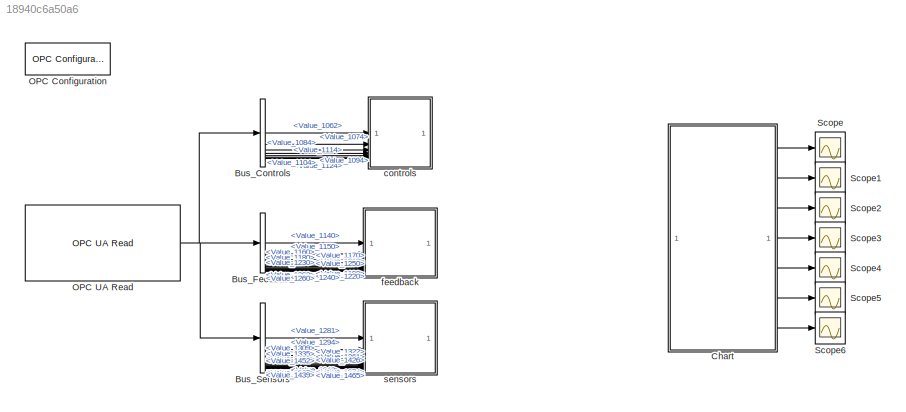
MODEL slx_18940c6a50a6
KIND model
CONFIG AbsTol = auto
CONFIG EnableMultiTasking = off
CONFIG FixedStep = auto
CONFIG InitFcn = % Exemplo no Windows, usando pscp (PuTTY scp) ou scp no Linux/macOS\nchave = '<userpath>/OneDrive/Área de Trabalho/matlab-Gemeo/Sombra_Distribution/Matlab_conect/id_rsa_matlab';\nusuario = 'root';\nip = '200.145.26.206';\narquivo_remoto = '/root/ProjetoGemeo/AAS/Distribution/Variables.csv';\narquivo_local = 'Variables.csv';\n\n% Comando scp para baixar arquivo usando chave privada\ncmd = sprintf('scp -i "...<+338ch>
CONFIG MaxStep = auto
CONFIG MinStep = auto
CONFIG RelTol = 1e-3
CONFIG SampleTimeConstraint = Unconstrained
CONFIG SolverName = VariableStepAuto
CONFIG StartTime = 0.0
CONFIG StopTime = 10.0
BLOCK [BusSelector] Bus_Controls
  OutputSignals = Value_1062,Value_1074,Value_1084,Value_1094,Value_1104,Value_1114,Value_1124
BLOCK [BusSelector] Bus_Feedback
  OutputSignals = Value_1140,Value_1150,Value_1160,Value_1170,Value_1180,Value_1190,Value_1200,Value_1210,Value_1220,Value_1230,Value_1240,Value_1250,Value_1260
BLOCK [BusSelector] Bus_Sensors
  OutputSignals = Value_1281,Value_1294,Value_1309,Value_1322,Value_1335,Value_1348,Value_1361,Value_1374,Value_1387,Value_1400,Value_1413,Value_1426,Value_1439,Value_1452,Value_1465
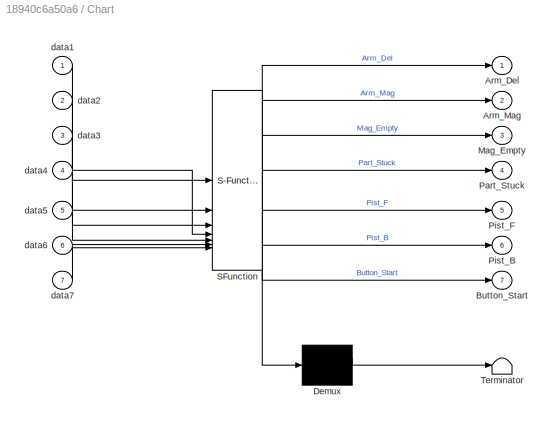
BLOCK [SubSystem] Chart
  ErrorFcn = Stateflow.Translate.translate
  PermitHierarchicalResolution = ExplicitOnly
  SFBlockType = Chart
  TreatAsAtomicUnit = on
BLOCK [Demux] Chart/ Demux 
  Outputs = 1
BLOCK [S-Function] Chart/ SFunction 
  EnableBusSupport = on
  FunctionName = sf_sfun
  PortCounts = [7 8]
  SFcnIsStateOwnerBlock = off
  SFunctionDeploymentMode = off
  Tag = Stateflow S-Function 3
BLOCK [Terminator] Chart/ Terminator 
BLOCK [Outport] Chart/Arm_Del
BLOCK [Outport] Chart/Arm_Mag
  Port = 2
BLOCK [Outport] Chart/Button_Start
  Port = 7
BLOCK [Outport] Chart/Mag_Empty
  Port = 3
BLOCK [Outport] Chart/Part_Stuck
  Port = 4
BLOCK [Outport] Chart/Pist_B
  Port = 6
BLOCK [Outport] Chart/Pist_F
  Port = 5
BLOCK [Inport] Chart/data1
BLOCK [Inport] Chart/data2
  Port = 2
BLOCK [Inport] Chart/data3
  Port = 3
BLOCK [Inport] Chart/data4
  Port = 4
BLOCK [Inport] Chart/data5
  Port = 5
BLOCK [Inport] Chart/data6
  Port = 6
BLOCK [Inport] Chart/data7
  Port = 7
BLOCK [Reference] OPC Configuration  REF=opclib/OPC Configuration
  SourceBlock = opclib/OPC Configuration
  SourceType = OPC Configuration
BLOCK [Reference] OPC UA Read  REF=opcualib/OPC UA Read
  SourceBlock = opcualib/OPC UA Read
  SourceType = opcUARead
BLOCK [Scope] Scope
  Floating = off
  NumInputPorts = 1
  ScopeSpecificationString = Simulink.scopes.TimeScopeBlockCfg('CurrentConfiguration', extmgr.ConfigurationSet(extmgr.Configuration('Core','General UI',true),extmgr.Configuration('Core','Source UI',true),extmgr.Configuration('Sources','WiredSimulink',true),extmgr.Configuration('Visuals','Time Domain',true,'SerializedDisplays',{struct('MinYLimReal','-0.125','MaxYLimReal','1.125','YLabelReal','','MinYLimMag','0.00000','MaxYLimM...<+1443ch>
BLOCK [Scope] Scope1
  Floating = off
  NumInputPorts = 1
  ScopeSpecificationString = Simulink.scopes.TimeScopeBlockCfg('CurrentConfiguration', extmgr.ConfigurationSet(extmgr.Configuration('Core','General UI',true),extmgr.Configuration('Core','Source UI',true),extmgr.Configuration('Sources','WiredSimulink',true,'DataLoggingVariableName','ScopeData1'),extmgr.Configuration('Visuals','Time Domain',true,'SerializedDisplays',{struct('MinYLimReal','-0.125','MaxYLimReal','1.125','YLabelRe...<+1449ch>
BLOCK [Scope] Scope2
  Floating = off
  NumInputPorts = 1
  ScopeSpecificationString = Simulink.scopes.TimeScopeBlockCfg('CurrentConfiguration', extmgr.ConfigurationSet(extmgr.Configuration('Core','General UI',true),extmgr.Configuration('Core','Source UI',true),extmgr.Configuration('Sources','WiredSimulink',true,'DataLoggingVariableName','ScopeData2'),extmgr.Configuration('Visuals','Time Domain',true,'SerializedDisplays',{struct('MinYLimReal','-1.00000','MaxYLimReal','1.00000','YLab...<+1463ch>
BLOCK [Scope] Scope3
  Floating = off
  NumInputPorts = 1
  ScopeSpecificationString = Simulink.scopes.TimeScopeBlockCfg('CurrentConfiguration', extmgr.ConfigurationSet(extmgr.Configuration('Core','General UI',true),extmgr.Configuration('Core','Source UI',true),extmgr.Configuration('Sources','WiredSimulink',true,'DataLoggingVariableName','ScopeData3'),extmgr.Configuration('Visuals','Time Domain',true),extmgr.Configuration('Tools','Plot Navigation',true),extmgr.Configuration('Tools',...<+40ch>
BLOCK [Scope] Scope4
  Floating = off
  NumInputPorts = 1
  ScopeSpecificationString = Simulink.scopes.TimeScopeBlockCfg('CurrentConfiguration', extmgr.ConfigurationSet(extmgr.Configuration('Core','General UI',true),extmgr.Configuration('Core','Source UI',true),extmgr.Configuration('Sources','WiredSimulink',true,'DataLoggingVariableName','ScopeData4'),extmgr.Configuration('Visuals','Time Domain',true),extmgr.Configuration('Tools','Plot Navigation',true),extmgr.Configuration('Tools',...<+40ch>
BLOCK [Scope] Scope5
  Floating = off
  NumInputPorts = 1
  ScopeSpecificationString = Simulink.scopes.TimeScopeBlockCfg('CurrentConfiguration', extmgr.ConfigurationSet(extmgr.Configuration('Core','General UI',true),extmgr.Configuration('Core','Source UI',true),extmgr.Configuration('Sources','WiredSimulink',true,'DataLoggingVariableName','ScopeData5'),extmgr.Configuration('Visuals','Time Domain',true,'SerializedDisplays',{struct('MinYLimReal','-0.125','MaxYLimReal','1.125','YLabelRe...<+1448ch>
BLOCK [Scope] Scope6
  Floating = off
  NumInputPorts = 1
  ScopeSpecificationString = Simulink.scopes.TimeScopeBlockCfg('CurrentConfiguration', extmgr.ConfigurationSet(extmgr.Configuration('Core','General UI',true),extmgr.Configuration('Core','Source UI',true),extmgr.Configuration('Sources','WiredSimulink',true,'DataLoggingVariableName','ScopeData6'),extmgr.Configuration('Visuals','Time Domain',true,'SerializedDisplays',{struct('MinYLimReal','-0.125','MaxYLimReal','1.125','YLabelRe...<+1454ch>
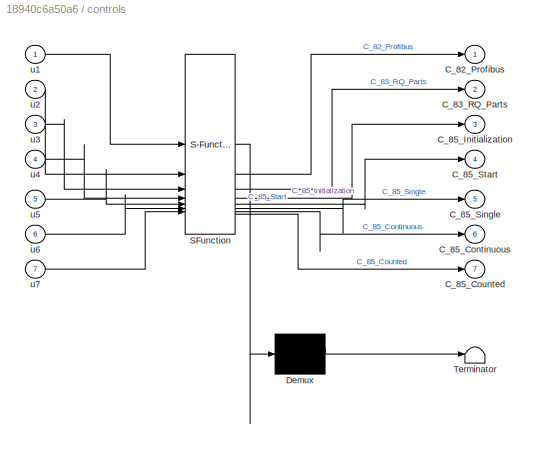
BLOCK [SubSystem] controls
  ErrorFcn = Stateflow.Translate.translate
  PermitHierarchicalResolution = ExplicitOnly
  SFBlockType = MATLAB Function
  TreatAsAtomicUnit = on
BLOCK [Demux] controls/ Demux 
  Outputs = 1
BLOCK [S-Function] controls/ SFunction 
  EnableBusSupport = on
  FunctionName = sf_sfun
  PortCounts = [7 8]
  SFcnIsStateOwnerBlock = off
  SFunctionDeploymentMode = off
  Tag = Stateflow S-Function 2
BLOCK [Terminator] controls/ Terminator 
BLOCK [Outport] controls/C_82_Profibus
BLOCK [Outport] controls/C_83_RQ_Parts
  Port = 2
BLOCK [Outport] controls/C_85_Continuous
  Port = 6
BLOCK [Outport] controls/C_85_Counted
  Port = 7
BLOCK [Outport] controls/C_85_Initialization
  Port = 3
BLOCK [Outport] controls/C_85_Single
  Port = 5
BLOCK [Outport] controls/C_85_Start
  Port = 4
BLOCK [Inport] controls/u1
BLOCK [Inport] controls/u2
  Port = 2
BLOCK [Inport] controls/u3
  Port = 3
BLOCK [Inport] controls/u4
  Port = 4
BLOCK [Inport] controls/u5
  Port = 5
BLOCK [Inport] controls/u6
  Port = 6
BLOCK [Inport] controls/u7
  Port = 7
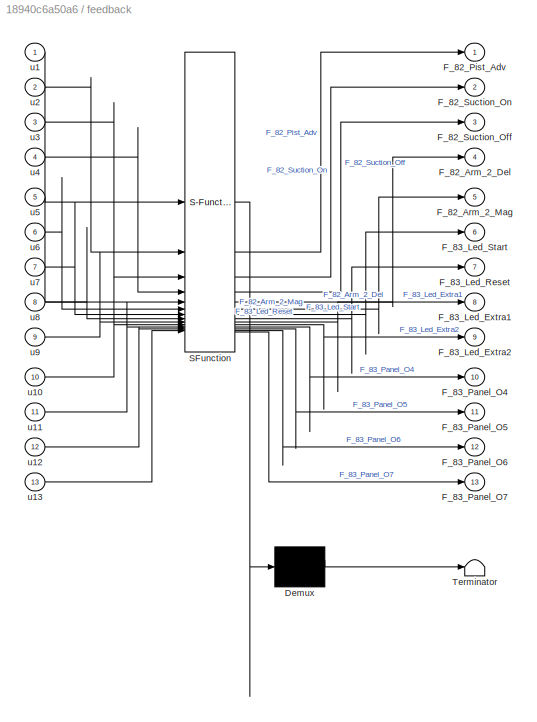
BLOCK [SubSystem] feedback
  ErrorFcn = Stateflow.Translate.translate
  PermitHierarchicalResolution = ExplicitOnly
  SFBlockType = MATLAB Function
  TreatAsAtomicUnit = on
BLOCK [Demux] feedback/ Demux 
  Outputs = 1
BLOCK [S-Function] feedback/ SFunction 
  EnableBusSupport = on
  FunctionName = sf_sfun
  PortCounts = [13 14]
  SFcnIsStateOwnerBlock = off
  SFunctionDeploymentMode = off
  Tag = Stateflow S-Function 1
BLOCK [Terminator] feedback/ Terminator 
BLOCK [Outport] feedback/F_82_Arm_2_Del
  Port = 4
BLOCK [Outport] feedback/F_82_Arm_2_Mag
  Port = 5
BLOCK [Outport] feedback/F_82_Pist_Adv
BLOCK [Outport] feedback/F_82_Suction_Off
  Port = 3
BLOCK [Outport] feedback/F_82_Suction_On
  Port = 2
BLOCK [Outport] feedback/F_83_Led_Extra1
  Port = 8
BLOCK [Outport] feedback/F_83_Led_Extra2
  Port = 9
BLOCK [Outport] feedback/F_83_Led_Reset
  Port = 7
BLOCK [Outport] feedback/F_83_Led_Start
  Port = 6
BLOCK [Outport] feedback/F_83_Panel_O4
  Port = 10
BLOCK [Outport] feedback/F_83_Panel_O5
  Port = 11
BLOCK [Outport] feedback/F_83_Panel_O6
  Port = 12
BLOCK [Outport] feedback/F_83_Panel_O7
  Port = 13
BLOCK [Inport] feedback/u1
BLOCK [Inport] feedback/u10
  Port = 10
BLOCK [Inport] feedback/u11
  Port = 11
BLOCK [Inport] feedback/u12
  Port = 12
BLOCK [Inport] feedback/u13
  Port = 13
BLOCK [Inport] feedback/u2
  Port = 2
BLOCK [Inport] feedback/u3
  Port = 3
BLOCK [Inport] feedback/u4
  Port = 4
BLOCK [Inport] feedback/u5
  Port = 5
BLOCK [Inport] feedback/u6
  Port = 6
BLOCK [Inport] feedback/u7
  Port = 7
BLOCK [Inport] feedback/u8
  Port = 8
BLOCK [Inport] feedback/u9
  Port = 9
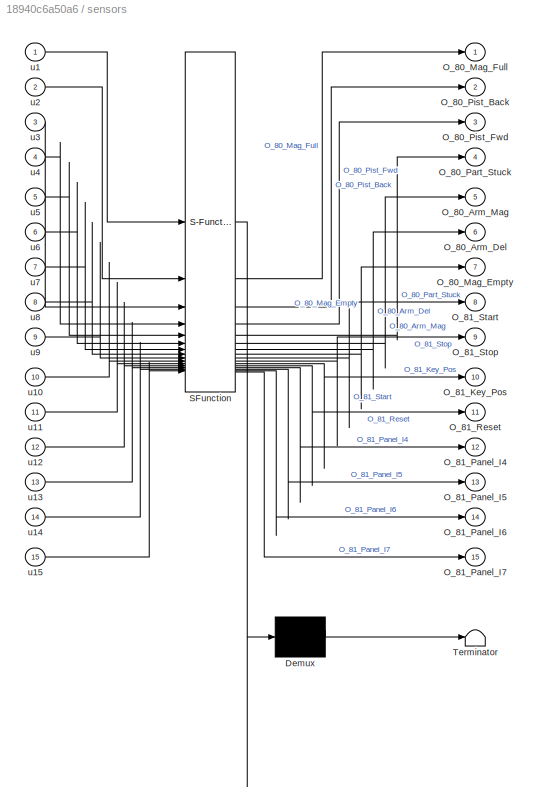
BLOCK [SubSystem] sensors
  ErrorFcn = Stateflow.Translate.translate
  PermitHierarchicalResolution = ExplicitOnly
  SFBlockType = MATLAB Function
  TreatAsAtomicUnit = on
BLOCK [Demux] sensors/ Demux 
  Outputs = 1
BLOCK [S-Function] sensors/ SFunction 
  EnableBusSupport = on
  FunctionName = sf_sfun
  PortCounts = [15 16]
  SFcnIsStateOwnerBlock = off
  SFunctionDeploymentMode = off
  Tag = Stateflow S-Function 4
BLOCK [Terminator] sensors/ Terminator 
BLOCK [Outport] sensors/O_80_Arm_Del
  Port = 6
BLOCK [Outport] sensors/O_80_Arm_Mag
  Port = 5
BLOCK [Outport] sensors/O_80_Mag_Empty
  Port = 7
BLOCK [Outport] sensors/O_80_Mag_Full
BLOCK [Outport] sensors/O_80_Part_Stuck
  Port = 4
BLOCK [Outport] sensors/O_80_Pist_Back
  Port = 2
BLOCK [Outport] sensors/O_80_Pist_Fwd
  Port = 3
BLOCK [Outport] sensors/O_81_Key_Pos
  Port = 10
BLOCK [Outport] sensors/O_81_Panel_I4
  Port = 12
BLOCK [Outport] sensors/O_81_Panel_I5
  Port = 13
BLOCK [Outport] sensors/O_81_Panel_I6
  Port = 14
BLOCK [Outport] sensors/O_81_Panel_I7
  Port = 15
BLOCK [Outport] sensors/O_81_Reset
  Port = 11
BLOCK [Outport] sensors/O_81_Start
  Port = 8
BLOCK [Outport] sensors/O_81_Stop
  Port = 9
BLOCK [Inport] sensors/u1
BLOCK [Inport] sensors/u10
  Port = 10
BLOCK [Inport] sensors/u11
  Port = 11
BLOCK [Inport] sensors/u12
  Port = 12
BLOCK [Inport] sensors/u13
  Port = 13
BLOCK [Inport] sensors/u14
  Port = 14
BLOCK [Inport] sensors/u15
  Port = 15
BLOCK [Inport] sensors/u2
  Port = 2
BLOCK [Inport] sensors/u3
  Port = 3
BLOCK [Inport] sensors/u4
  Port = 4
BLOCK [Inport] sensors/u5
  Port = 5
BLOCK [Inport] sensors/u6
  Port = 6
BLOCK [Inport] sensors/u7
  Port = 7
BLOCK [Inport] sensors/u8
  Port = 8
BLOCK [Inport] sensors/u9
  Port = 9
LINE Bus_Controls:1 -> controls:1
LINE Bus_Controls:2 -> controls:2
LINE Bus_Controls:3 -> controls:3
LINE Bus_Controls:4 -> controls:4
LINE Bus_Controls:5 -> controls:5
LINE Bus_Controls:6 -> controls:6
LINE Bus_Controls:7 -> controls:7
LINE Bus_Feedback:1 -> feedback:1
LINE Bus_Feedback:10 -> feedback:10
LINE Bus_Feedback:11 -> feedback:11
LINE Bus_Feedback:12 -> feedback:12
LINE Bus_Feedback:13 -> feedback:13
LINE Bus_Feedback:2 -> feedback:2
LINE Bus_Feedback:3 -> feedback:3
LINE Bus_Feedback:4 -> feedback:4
LINE Bus_Feedback:5 -> feedback:5
LINE Bus_Feedback:6 -> feedback:6
LINE Bus_Feedback:7 -> feedback:7
LINE Bus_Feedback:8 -> feedback:8
LINE Bus_Feedback:9 -> feedback:9
LINE Bus_Sensors:1 -> sensors:1
LINE Bus_Sensors:10 -> sensors:10
LINE Bus_Sensors:11 -> sensors:11
LINE Bus_Sensors:12 -> sensors:12
LINE Bus_Sensors:13 -> sensors:13
LINE Bus_Sensors:14 -> sensors:14
LINE Bus_Sensors:15 -> sensors:15
LINE Bus_Sensors:2 -> sensors:2
LINE Bus_Sensors:3 -> sensors:3
LINE Bus_Sensors:4 -> sensors:4
LINE Bus_Sensors:5 -> sensors:5
LINE Bus_Sensors:6 -> sensors:6
LINE Bus_Sensors:7 -> sensors:7
LINE Bus_Sensors:8 -> sensors:8
LINE Bus_Sensors:9 -> sensors:9
LINE Chart:1 -> Scope:1
LINE Chart:2 -> Scope1:1
LINE Chart:3 -> Scope2:1
LINE Chart:4 -> Scope3:1
LINE Chart:5 -> Scope4:1
LINE Chart:6 -> Scope5:1
LINE Chart:7 -> Scope6:1
NET OPC UA Read:1 -> Bus_Controls:1, Bus_Feedback:1, Bus_Sensors:1
note: NET lines group one-source signal fan-out (src -> all destinations, sorted); 1:1 wires keep LINE
CHART sensors states=1 transitions=1
  STATE_LABEL 'eML_blk_kernel()'
  STATE_LABEL 'SCRIPT:\nfunction [O_80_Mag_Full,O_80_Pist_Back,O_80_Pist_Fwd,O_80_Part_Stuck,...\n    O_80_Arm_Mag,O_80_Arm_Del,O_80_Mag_Empty,O_81_Start,O_81_Stop,...\n    O_81_Key_Pos,O_81_Reset,O_81_Panel_I4,O_81_Panel_I5,O_81_Panel_I6,...\n    O_81_Panel_I7] = fcn_sensors(u1,u2,u3,u4,u5,u6,u7,u8,u9,...\n    u10,u11,u12,u13,u14,u15)\n\nO_80_Mag_Full = u1;\nO_80_Pist_Back = u2;\nO_80_Pist_Fwd = u3;\nO_80_Part_Stuck = u4...<+215ch>'
CHART feedback states=1 transitions=1
  STATE_LABEL 'eML_blk_kernel()'
  STATE_LABEL 'SCRIPT:\nfunction [F_82_Pist_Adv,F_82_Suction_On,F_82_Suction_Off,F_82_Arm_2_Del, ...\n    F_82_Arm_2_Mag,F_83_Led_Start,F_83_Led_Reset,F_83_Led_Extra1,...\n    F_83_Led_Extra2,F_83_Panel_O4,F_83_Panel_O5,F_83_Panel_O6,...\n    F_83_Panel_O7] = fcn_feedbacks(u1,u2,u3,u4,u5,u6,u7,u8,u9,...\n    u10,u11,u12,u13)\n\nF_82_Pist_Adv = u1;\nF_82_Suction_On = u2;\nF_82_Suction_Off = u3;\nF_82_Arm_2_Del = u4;\nF_82_A...<+186ch>'
CHART controls states=1 transitions=1
  STATE_LABEL 'eML_blk_kernel()'
  STATE_LABEL 'SCRIPT:\nfunction [C_82_Profibus, C_83_RQ_Parts, ...\n    C_85_Initialization, C_85_Start, ...\n    C_85_Single, C_85_Continuous, ...\n    C_85_Counted] = fcn_controls(u1,u2,u3,u4,u5,u6,u7)\n\nC_82_Profibus = u1;\nC_83_RQ_Parts = u2;\nC_85_Initialization = u3;\nC_85_Start = u4;\nC_85_Single = u5; \nC_85_Continuous = u6;\nC_85_Counted = u7;'
CHART Chart states=9 transitions=9
  STATE_LABEL 'Init\nentry:\nButton_Start = data7;\nPist_B = data1;\nPist_F = data2;\nPart_Stuck = data3;\nArm_Mag = data4;\nArm_Del = data5;\nMag_Empty = data6;\n'
  STATE_LABEL 'Arm_2_Del\nentry:\nPist_B = 1;\nPist_F = 0;\nPart_Stuck = 0;\nArm_Mag = 0;\nArm_Del = 1;\nMag_Empty = 0;\n'
  STATE_LABEL 'Pist_Fowd\nentry:\nPist_B = 0;\nPist_F = 1;\nPart_Stuck = 0;\nArm_Mag = 0;\nArm_Del = 1;\nMag_Empty = 0;'
  STATE_LABEL 'Pist_Back\nentry:\nPist_B = 1;\nPist_F = 0;\nPart_Stuck = 0;\nArm_Mag = 0;\nArm_Del = 1;\nMag_Empty = 0;'
  STATE_LABEL 'Arm_2_Mag\nentry:\nPist_B = 1;\nPist_F = 0;\nPart_Stuck = 0;\nArm_Mag = 1;\nArm_Del = 0;\nMag_Empty = 0;'
  STATE_LABEL 'Arm_2_Mag1\nentry:\nButton_Start = 0;\nPist_B = 1;\nPist_F = 0;\nPart_Stuck = 0;\nArm_Mag = 1;\nArm_Del = 0;\nMag_Empty = 0;'
  STATE_LABEL 'Stuck_Off\nentry:\nPist_B = 1;\nPist_F = 0;\nPart_Stuck = 0;\nArm_Mag = 0;\nArm_Del = 1;\nMag_Empty = 0;'
  STATE_LABEL 'Arm_2_Del1\nentry:\nPist_B = 1;\nPist_F = 0;\nPart_Stuck = 1;\nArm_Mag = 0;\nArm_Del = 1;\nMag_Empty = 0;'
  STATE_LABEL 'Stuck_On\nentry:\nPist_B = 1;\nPist_F = 0;\nPart_Stuck = 1;\nArm_Mag = 1;\nArm_Del = 0;\nMag_Empty = 0;'
CHART  states=0 transitions=0
CHART  states=0 transitions=0
CHART  states=0 transitions=0
CHART  states=0 transitions=0
